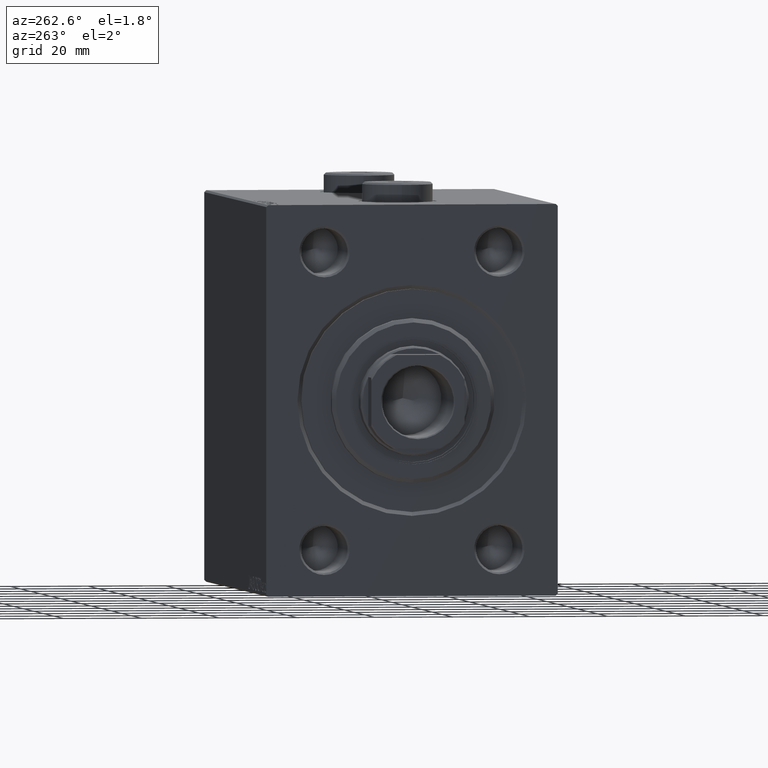
[diagram: clean part render]
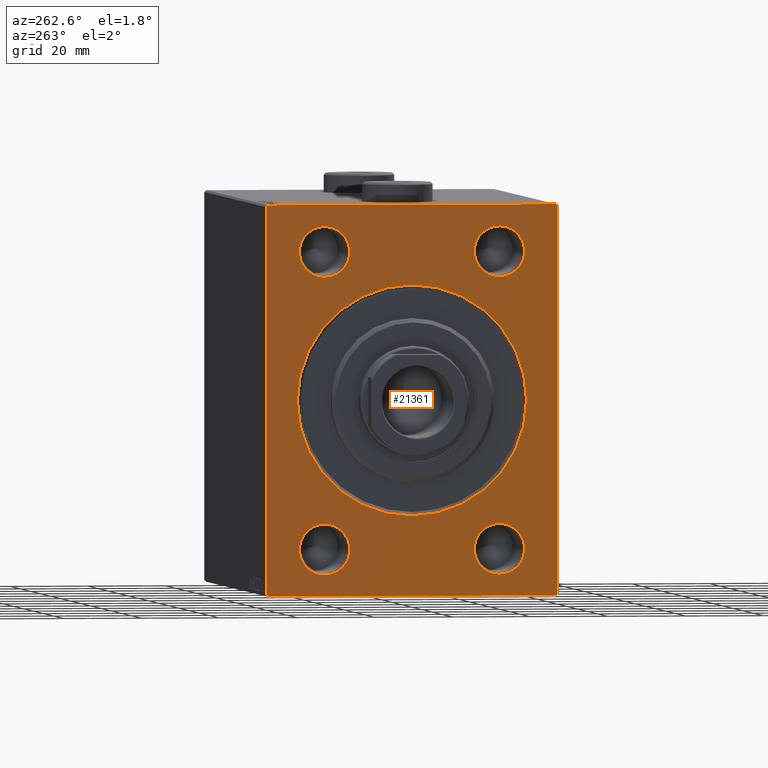
[diagram: same view with one face highlighted and labeled with its STEP entity id]
A machine part, auxiliary view. The second image highlights one B-rep face of the part: STEP entity #21361.
In plain terms, the highlighted planar face has unit normal (1, 0, 0).
Its self-contained STEP definition (entity closure, byte-faithful):
#521 = VERTEX_POINT ( 'NONE', #28416 ) ;
#1247 = VERTEX_POINT ( 'NONE', #42383 ) ;
#1476 = CARTESIAN_POINT ( 'NONE',  ( 0.000000000000000000, 37.50000000000000711, -49.49999999999997158 ) ) ;
#1762 = ORIENTED_EDGE ( 'NONE', *, *, #34734, .T. ) ;
#2102 = EDGE_LOOP ( 'NONE', ( #41513, #29596 ) ) ;
#2862 = CARTESIAN_POINT ( 'NONE',  ( 0.000000000000000000, -22.50000000000000000, -44.49999999999998579 ) ) ;
#2893 = CARTESIAN_POINT ( 'NONE',  ( 0.000000000000000000, 22.50000000000000000, -31.50000000000002842 ) ) ;
#3477 = VECTOR ( 'NONE', #7818, 999.9999999999998863 ) ;
#3505 = VECTOR ( 'NONE', #17600, 1000.000000000000000 ) ;
#3683 = EDGE_CURVE ( 'NONE', #43829, #19424, #28732, .T. ) ;
#4018 = FACE_OUTER_BOUND ( 'NONE', #15220, .T. ) ;
#4111 = CARTESIAN_POINT ( 'NONE',  ( 0.000000000000000000, -22.50000000000000000, 37.99999999999999289 ) ) ;
#4342 = DIRECTION ( 'NONE',  ( 0.000000000000000000, 0.000000000000000000, -1.000000000000000000 ) ) ;
#4634 = ORIENTED_EDGE ( 'NONE', *, *, #3683, .T. ) ;
#5917 = EDGE_LOOP ( 'NONE', ( #4634, #30999 ) ) ;
#6095 = CIRCLE ( 'NONE', #27472, 6.499999999999977796 ) ;
#6747 = VECTOR ( 'NONE', #37772, 1000.000000000000000 ) ;
#7035 = AXIS2_PLACEMENT_3D ( 'NONE', #21237, #28408, #32103 ) ;
#7368 = DIRECTION ( 'NONE',  ( 0.000000000000000000, 1.000000000000000000, 0.000000000000000000 ) ) ;
#7473 = DIRECTION ( 'NONE',  ( 1.000000000000000000, 0.000000000000000000, 0.000000000000000000 ) ) ;
#7818 = DIRECTION ( 'NONE',  ( -0.000000000000000000, 0.7071067811865425767, -0.7071067811865525687 ) ) ;
#7821 = DIRECTION ( 'NONE',  ( 0.000000000000000000, 0.000000000000000000, -1.000000000000000000 ) ) ;
#8059 = DIRECTION ( 'NONE',  ( 0.000000000000000000, 0.000000000000000000, -1.000000000000000000 ) ) ;
#8066 = EDGE_CURVE ( 'NONE', #15387, #521, #40799, .T. ) ;
#8192 = VERTEX_POINT ( 'NONE', #42155 ) ;
#8421 = LINE ( 'NONE', #1476, #35745 ) ;
#8925 = VERTEX_POINT ( 'NONE', #17450 ) ;
#8971 = DIRECTION ( 'NONE',  ( 0.000000000000000000, 0.000000000000000000, -1.000000000000000000 ) ) ;
#9129 = CARTESIAN_POINT ( 'NONE',  ( 0.000000000000000000, 0.000000000000000000, 29.50000000000004263 ) ) ;
#9593 = CARTESIAN_POINT ( 'NONE',  ( 0.000000000000000000, -36.99999999999999289, 49.99999999999998579 ) ) ;
#9908 = ORIENTED_EDGE ( 'NONE', *, *, #31704, .T. ) ;
#9962 = CARTESIAN_POINT ( 'NONE',  ( 0.000000000000000000, -22.50000000000000000, -31.50000000000002842 ) ) ;
#10241 = CARTESIAN_POINT ( 'NONE',  ( 0.000000000000000000, 22.50000000000000000, -38.00000000000000711 ) ) ;
#10718 = CIRCLE ( 'NONE', #14388, 29.50000000000004263 ) ;
#10747 = VERTEX_POINT ( 'NONE', #20413 ) ;
#11033 = CARTESIAN_POINT ( 'NONE',  ( 0.000000000000000000, 22.50000000000000000, -38.00000000000000711 ) ) ;
#11155 = DIRECTION ( 'NONE',  ( 0.000000000000000000, 0.000000000000000000, -1.000000000000000000 ) ) ;
#11730 = CARTESIAN_POINT ( 'NONE',  ( 0.000000000000000000, -37.50000000000000000, 49.49999999999997158 ) ) ;
#12026 = VERTEX_POINT ( 'NONE', #2893 ) ;
#12096 = VERTEX_POINT ( 'NONE', #9593 ) ;
#12216 = ORIENTED_EDGE ( 'NONE', *, *, #19260, .T. ) ;
#12534 = DIRECTION ( 'NONE',  ( 1.000000000000000000, 0.000000000000000000, 0.000000000000000000 ) ) ;
#13284 = CARTESIAN_POINT ( 'NONE',  ( 0.000000000000000000, 37.49999999999999289, 50.00000000000000711 ) ) ;
#13532 = ORIENTED_EDGE ( 'NONE', *, *, #26259, .T. ) ;
#13823 = ORIENTED_EDGE ( 'NONE', *, *, #8066, .F. ) ;
#14162 = EDGE_LOOP ( 'NONE', ( #35548, #1762 ) ) ;
#14388 = AXIS2_PLACEMENT_3D ( 'NONE', #43640, #18899, #8059 ) ;
#14440 = CARTESIAN_POINT ( 'NONE',  ( 0.000000000000000000, -22.50000000000000000, 37.99999999999999289 ) ) ;
#14608 = ORIENTED_EDGE ( 'NONE', *, *, #42981, .T. ) ;
#14633 = EDGE_CURVE ( 'NONE', #8192, #31940, #40154, .T. ) ;
#15133 = VERTEX_POINT ( 'NONE', #22569 ) ;
#15194 = LINE ( 'NONE', #32530, #34208 ) ;
#15220 = EDGE_LOOP ( 'NONE', ( #26257, #9908, #40577, #25791, #13823, #12216, #35010, #13532 ) ) ;
#15323 = VECTOR ( 'NONE', #23664, 1000.000000000000000 ) ;
#15387 = VERTEX_POINT ( 'NONE', #41704 ) ;
#15660 = LINE ( 'NONE', #13284, #15323 ) ;
#16723 = VECTOR ( 'NONE', #38208, 1000.000000000000114 ) ;
#17450 = CARTESIAN_POINT ( 'NONE',  ( 0.000000000000000000, -37.50000000000000000, -49.49999999999997158 ) ) ;
#17600 = DIRECTION ( 'NONE',  ( -0.000000000000000000, 0.7071067811865426878, 0.7071067811865524577 ) ) ;
#17866 = AXIS2_PLACEMENT_3D ( 'NONE', #37485, #12534, #23152 ) ;
#18193 = DIRECTION ( 'NONE',  ( 1.000000000000000000, 0.000000000000000000, 0.000000000000000000 ) ) ;
#18326 = FACE_BOUND ( 'NONE', #5917, .T. ) ;
#18899 = DIRECTION ( 'NONE',  ( 1.000000000000000000, 0.000000000000000000, 0.000000000000000000 ) ) ;
#19260 = EDGE_CURVE ( 'NONE', #15387, #41913, #8421, .T. ) ;
#19424 = VERTEX_POINT ( 'NONE', #2862 ) ;
#19707 = VERTEX_POINT ( 'NONE', #26093 ) ;
#20413 = CARTESIAN_POINT ( 'NONE',  ( 0.000000000000000000, 3.612708057484697126E-15, -29.50000000000004263 ) ) ;
#20512 = AXIS2_PLACEMENT_3D ( 'NONE', #11033, #35997, #4342 ) ;
#20923 = VERTEX_POINT ( 'NONE', #32533 ) ;
#21044 = CIRCLE ( 'NONE', #7035, 6.499999999999977796 ) ;
#21237 = CARTESIAN_POINT ( 'NONE',  ( 0.000000000000000000, -22.50000000000000000, -38.00000000000000711 ) ) ;
#21333 = FACE_BOUND ( 'NONE', #14162, .T. ) ;
#21361 = ADVANCED_FACE ( 'NONE', ( #39131, #18326, #35900, #32874, #21333, #4018 ), #22014, .F. ) ;
#21815 = DIRECTION ( 'NONE',  ( 1.000000000000000000, 0.000000000000000000, 0.000000000000000000 ) ) ;
#21878 = DIRECTION ( 'NONE',  ( 0.000000000000000000, 0.000000000000000000, -1.000000000000000000 ) ) ;
#22014 = PLANE ( 'NONE',  #43166 ) ;
#22180 = ORIENTED_EDGE ( 'NONE', *, *, #14633, .T. ) ;
#22569 = CARTESIAN_POINT ( 'NONE',  ( 0.000000000000000000, 36.99999999999999289, 50.00000000000000711 ) ) ;
#22612 = AXIS2_PLACEMENT_3D ( 'NONE', #10241, #42588, #39109 ) ;
#22766 = EDGE_CURVE ( 'NONE', #19424, #43829, #21044, .T. ) ;
#22863 = EDGE_CURVE ( 'NONE', #28091, #10747, #10718, .T. ) ;
#23152 = DIRECTION ( 'NONE',  ( 0.000000000000000000, 0.000000000000000000, -1.000000000000000000 ) ) ;
#23441 = CARTESIAN_POINT ( 'NONE',  ( 0.000000000000000000, -22.50000000000000000, 31.50000000000001421 ) ) ;
#23664 = DIRECTION ( 'NONE',  ( 0.000000000000000000, -1.000000000000000000, -2.775557561562891844E-16 ) ) ;
#23724 = DIRECTION ( 'NONE',  ( 1.000000000000000000, 0.000000000000000000, 0.000000000000000000 ) ) ;
#24760 = CARTESIAN_POINT ( 'NONE',  ( 0.000000000000000000, 22.50000000000000000, -44.49999999999998579 ) ) ;
#25616 = VECTOR ( 'NONE', #7368, 1000.000000000000000 ) ;
#25791 = ORIENTED_EDGE ( 'NONE', *, *, #27480, .T. ) ;
#26093 = CARTESIAN_POINT ( 'NONE',  ( 0.000000000000000000, -37.50000000000000000, 49.49999999999997158 ) ) ;
#26257 = ORIENTED_EDGE ( 'NONE', *, *, #44891, .F. ) ;
#26259 = EDGE_CURVE ( 'NONE', #20923, #8925, #34744, .T. ) ;
#26354 = EDGE_CURVE ( 'NONE', #12026, #38704, #42571, .T. ) ;
#26909 = DIRECTION ( 'NONE',  ( 1.000000000000000000, 0.000000000000000000, 0.000000000000000000 ) ) ;
#27472 = AXIS2_PLACEMENT_3D ( 'NONE', #40634, #23724, #8971 ) ;
#27480 = EDGE_CURVE ( 'NONE', #15133, #521, #32082, .T. ) ;
#27644 = EDGE_LOOP ( 'NONE', ( #42715, #43831 ) ) ;
#28091 = VERTEX_POINT ( 'NONE', #9129 ) ;
#28408 = DIRECTION ( 'NONE',  ( 1.000000000000000000, 0.000000000000000000, 0.000000000000000000 ) ) ;
#28416 = CARTESIAN_POINT ( 'NONE',  ( 0.000000000000000000, 37.49999999999999289, 49.50000000000000000 ) ) ;
#28628 = EDGE_CURVE ( 'NONE', #20923, #41913, #45337, .T. ) ;
#28732 = CIRCLE ( 'NONE', #30946, 6.499999999999977796 ) ;
#28951 = CARTESIAN_POINT ( 'NONE',  ( 0.000000000000000000, 0.000000000000000000, 0.000000000000000000 ) ) ;
#29596 = ORIENTED_EDGE ( 'NONE', *, *, #41740, .T. ) ;
#29880 = EDGE_CURVE ( 'NONE', #15133, #12096, #15660, .T. ) ;
#30946 = AXIS2_PLACEMENT_3D ( 'NONE', #33631, #26909, #40798 ) ;
#30999 = ORIENTED_EDGE ( 'NONE', *, *, #22766, .T. ) ;
#31283 = AXIS2_PLACEMENT_3D ( 'NONE', #37936, #38841, #41645 ) ;
#31467 = LINE ( 'NONE', #11730, #3505 ) ;
#31576 = CIRCLE ( 'NONE', #36746, 6.499999999999977796 ) ;
#31704 = EDGE_CURVE ( 'NONE', #19707, #12096, #31467, .T. ) ;
#31940 = VERTEX_POINT ( 'NONE', #40159 ) ;
#32082 = LINE ( 'NONE', #35328, #3477 ) ;
#32103 = DIRECTION ( 'NONE',  ( 0.000000000000000000, 0.000000000000000000, -1.000000000000000000 ) ) ;
#32215 = VERTEX_POINT ( 'NONE', #23441 ) ;
#32530 = CARTESIAN_POINT ( 'NONE',  ( 0.000000000000000000, -37.50000000000000000, 49.99999999999998579 ) ) ;
#32533 = CARTESIAN_POINT ( 'NONE',  ( 0.000000000000000000, -37.00000000000000000, -50.00000000000000000 ) ) ;
#32827 = EDGE_CURVE ( 'NONE', #1247, #32215, #31576, .T. ) ;
#32874 = FACE_BOUND ( 'NONE', #43187, .T. ) ;
#33631 = CARTESIAN_POINT ( 'NONE',  ( 0.000000000000000000, -22.50000000000000000, -38.00000000000000711 ) ) ;
#34208 = VECTOR ( 'NONE', #7821, 1000.000000000000000 ) ;
#34734 = EDGE_CURVE ( 'NONE', #38704, #12026, #37511, .T. ) ;
#34744 = LINE ( 'NONE', #41233, #16723 ) ;
#35010 = ORIENTED_EDGE ( 'NONE', *, *, #28628, .F. ) ;
#35328 = CARTESIAN_POINT ( 'NONE',  ( 0.000000000000000000, 36.99999999999999289, 50.00000000000000711 ) ) ;
#35548 = ORIENTED_EDGE ( 'NONE', *, *, #26354, .T. ) ;
#35745 = VECTOR ( 'NONE', #39619, 1000.000000000000114 ) ;
#35900 = FACE_BOUND ( 'NONE', #27644, .T. ) ;
#35997 = DIRECTION ( 'NONE',  ( 1.000000000000000000, 0.000000000000000000, 0.000000000000000000 ) ) ;
#36746 = AXIS2_PLACEMENT_3D ( 'NONE', #14440, #21815, #38932 ) ;
#37485 = CARTESIAN_POINT ( 'NONE',  ( 0.000000000000000000, 0.000000000000000000, 0.000000000000000000 ) ) ;
#37511 = CIRCLE ( 'NONE', #20512, 6.499999999999977796 ) ;
#37772 = DIRECTION ( 'NONE',  ( 0.000000000000000000, -1.387778780781445676E-16, 1.000000000000000000 ) ) ;
#37801 = CIRCLE ( 'NONE', #17866, 29.50000000000004263 ) ;
#37936 = CARTESIAN_POINT ( 'NONE',  ( 0.000000000000000000, 22.50000000000000000, 37.99999999999999289 ) ) ;
#38208 = DIRECTION ( 'NONE',  ( -0.000000000000000000, -0.7071067811865474617, 0.7071067811865474617 ) ) ;
#38398 = CARTESIAN_POINT ( 'NONE',  ( 0.000000000000000000, -37.50000000000000000, -50.00000000000000000 ) ) ;
#38704 = VERTEX_POINT ( 'NONE', #24760 ) ;
#38841 = DIRECTION ( 'NONE',  ( 1.000000000000000000, 0.000000000000000000, 0.000000000000000000 ) ) ;
#38932 = DIRECTION ( 'NONE',  ( 0.000000000000000000, 0.000000000000000000, -1.000000000000000000 ) ) ;
#39109 = DIRECTION ( 'NONE',  ( 0.000000000000000000, 0.000000000000000000, -1.000000000000000000 ) ) ;
#39131 = FACE_BOUND ( 'NONE', #2102, .T. ) ;
#39619 = DIRECTION ( 'NONE',  ( 0.000000000000000000, -0.7071067811865425767, -0.7071067811865524577 ) ) ;
#40154 = CIRCLE ( 'NONE', #31283, 6.499999999999977796 ) ;
#40159 = CARTESIAN_POINT ( 'NONE',  ( 0.000000000000000000, 22.50000000000000000, 44.49999999999997158 ) ) ;
#40363 = EDGE_CURVE ( 'NONE', #32215, #1247, #42925, .T. ) ;
#40577 = ORIENTED_EDGE ( 'NONE', *, *, #29880, .F. ) ;
#40634 = CARTESIAN_POINT ( 'NONE',  ( 0.000000000000000000, 22.50000000000000000, 37.99999999999999289 ) ) ;
#40798 = DIRECTION ( 'NONE',  ( 0.000000000000000000, 0.000000000000000000, -1.000000000000000000 ) ) ;
#40799 = LINE ( 'NONE', #44487, #6747 ) ;
#40920 = CARTESIAN_POINT ( 'NONE',  ( 0.000000000000000000, 36.99999999999998579, -50.00000000000000000 ) ) ;
#41233 = CARTESIAN_POINT ( 'NONE',  ( 0.000000000000000000, -37.00000000000000000, -50.00000000000000000 ) ) ;
#41513 = ORIENTED_EDGE ( 'NONE', *, *, #22863, .T. ) ;
#41645 = DIRECTION ( 'NONE',  ( 0.000000000000000000, 0.000000000000000000, -1.000000000000000000 ) ) ;
#41704 = CARTESIAN_POINT ( 'NONE',  ( 0.000000000000000000, 37.50000000000000711, -49.49999999999997158 ) ) ;
#41740 = EDGE_CURVE ( 'NONE', #10747, #28091, #37801, .T. ) ;
#41913 = VERTEX_POINT ( 'NONE', #40920 ) ;
#42155 = CARTESIAN_POINT ( 'NONE',  ( 0.000000000000000000, 22.50000000000000000, 31.50000000000001421 ) ) ;
#42383 = CARTESIAN_POINT ( 'NONE',  ( 0.000000000000000000, -22.50000000000000000, 44.49999999999997158 ) ) ;
#42571 = CIRCLE ( 'NONE', #22612, 6.499999999999977796 ) ;
#42588 = DIRECTION ( 'NONE',  ( 1.000000000000000000, 0.000000000000000000, 0.000000000000000000 ) ) ;
#42715 = ORIENTED_EDGE ( 'NONE', *, *, #32827, .T. ) ;
#42925 = CIRCLE ( 'NONE', #45125, 6.499999999999977796 ) ;
#42981 = EDGE_CURVE ( 'NONE', #31940, #8192, #6095, .T. ) ;
#43166 = AXIS2_PLACEMENT_3D ( 'NONE', #28951, #7473, #11155 ) ;
#43187 = EDGE_LOOP ( 'NONE', ( #14608, #22180 ) ) ;
#43640 = CARTESIAN_POINT ( 'NONE',  ( 0.000000000000000000, 0.000000000000000000, 0.000000000000000000 ) ) ;
#43829 = VERTEX_POINT ( 'NONE', #9962 ) ;
#43831 = ORIENTED_EDGE ( 'NONE', *, *, #40363, .T. ) ;
#44487 = CARTESIAN_POINT ( 'NONE',  ( 0.000000000000000000, 37.50000000000000711, -50.00000000000000000 ) ) ;
#44891 = EDGE_CURVE ( 'NONE', #19707, #8925, #15194, .T. ) ;
#45125 = AXIS2_PLACEMENT_3D ( 'NONE', #4111, #18193, #21878 ) ;
#45337 = LINE ( 'NONE', #38398, #25616 ) ;